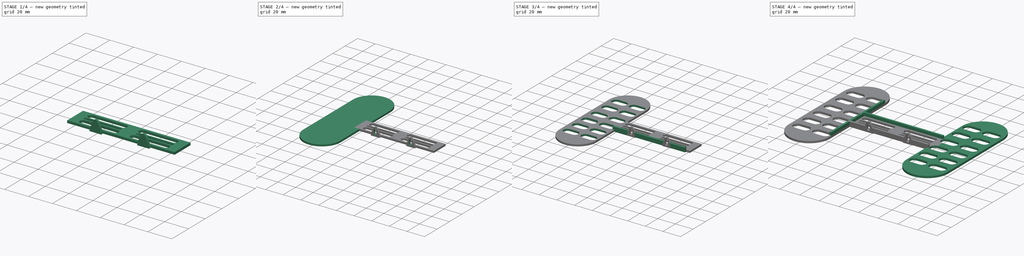
[diagram: build sequence overview — one tinted view per stage of 4, left to right]
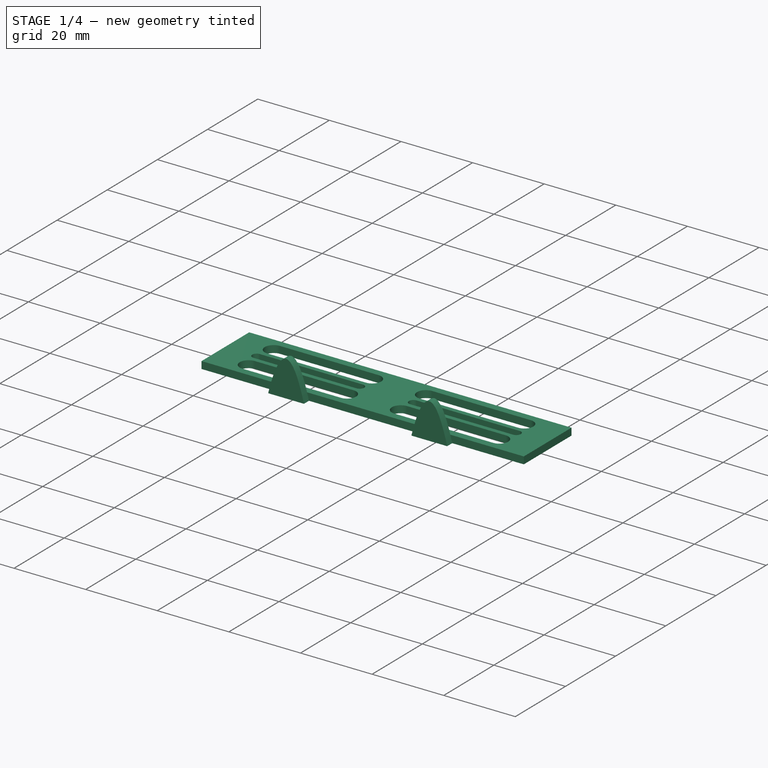
[diagram: stage 1 of 4 — iso view after this stage's code; geometry added in this stage tinted green]
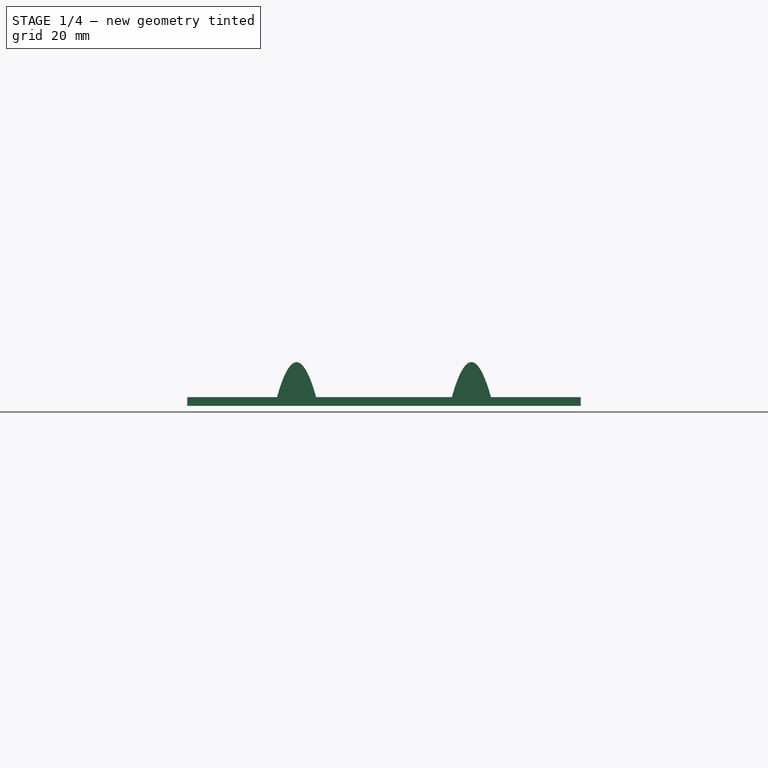
[diagram: stage 1 of 4 — front view after this stage's code; geometry added in this stage tinted green]
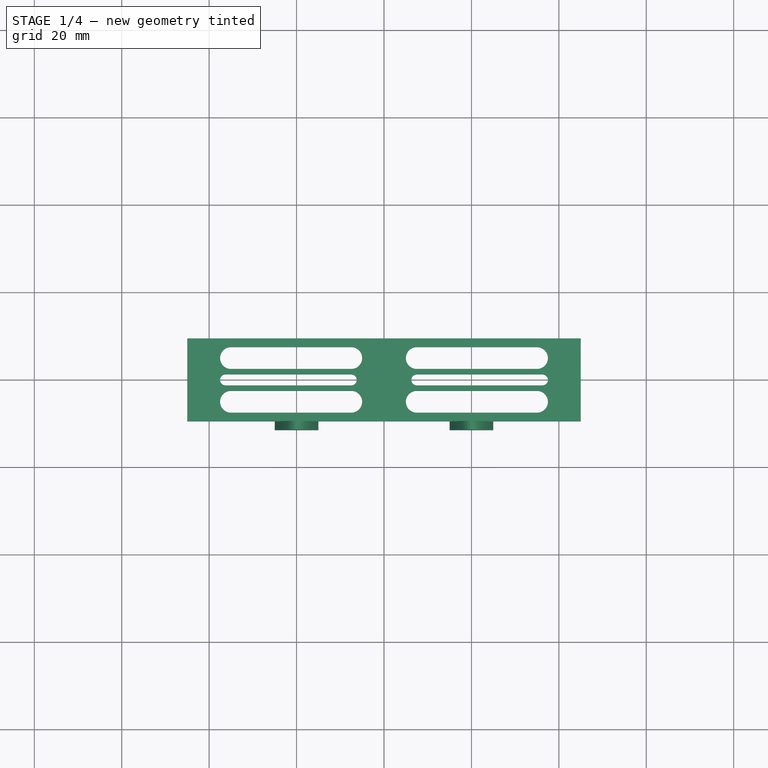
[diagram: stage 1 of 4 — top view after this stage's code; geometry added in this stage tinted green]
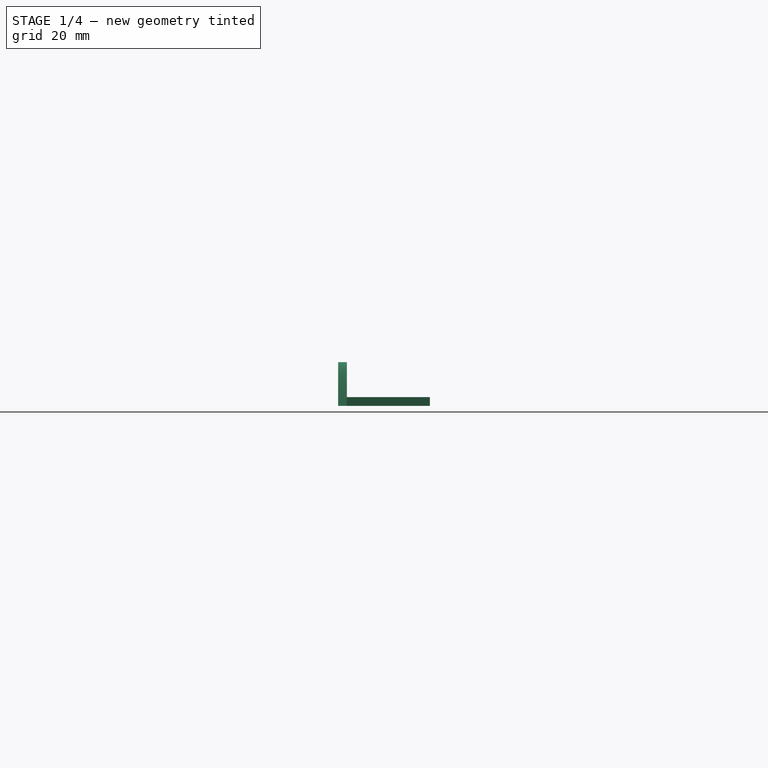
[diagram: stage 1 of 4 — right view after this stage's code; geometry added in this stage tinted green]
FCSTD DOCUMENT  (FreeCAD 0.19RUnknown)
Label: bar-car-simple
License: All rights reserved
LicenseURL: http://en.wikipedia.org/wiki/All_rights_reserved
objects: Sketcher::SketchObject×10, PartDesign::Pad×6, PartDesign::Pocket×4, PartDesign::Mirrored×1, PartDesign::Body×1
note: 32 computed .brp shape members not serialized (recipe doc carries the construction recipe); baked Part::Feature solids carry a one-line shape summary decoded from their .brp

FEATURE [Sketcher::SketchObject] Sketch
  FullyConstrained = false
  MapMode = 5
  Support = -> [XY_Plane]
  sketch-geometry (4):
    g0: LineSegment StartX=-45 StartY=9.5 StartZ=0 EndX=45 EndY=9.5 EndZ=0
    g1: LineSegment StartX=45 StartY=9.5 StartZ=0 EndX=45 EndY=-9.5 EndZ=0
    g2: LineSegment StartX=45 StartY=-9.5 StartZ=0 EndX=-45 EndY=-9.5 EndZ=0
    g3: LineSegment StartX=-45 StartY=-9.5 StartZ=0 EndX=-45 EndY=9.5 EndZ=0
  constraints (8):
    c: Coincident(g0,g1)
    c: Coincident(g1,g2)
    c: Coincident(g2,g3)
    c: Coincident(g3,g0)
    c: Horizontal(g0)
    c: Horizontal(g2)
    c: Vertical(g1)
    c: Vertical(g3)
FEATURE [PartDesign::Pad] Pad
  Direction = (1,1,1)
  Length = 2
  Length2 = 100
  Profile = -> Sketch
  Type = 0
FEATURE [Sketcher::SketchObject] Sketch001
  FullyConstrained = false
  MapMode = 5
  Placement = pos=(0,0,0) rot=(1,0,0;3.14159rad)
  Support = -> [Pad]
  sketch-geometry (24):
    g0: ArcOfCircle CenterX=-7.5 CenterY=5 CenterZ=0 NormalX=0 NormalY=0 NormalZ=1 AngleXU=0 Radius=2.5 StartAngle=4.71239 EndAngle=7.85398
    g1: ArcOfCircle CenterX=-35 CenterY=5 CenterZ=0 NormalX=0 NormalY=0 NormalZ=1 AngleXU=0 Radius=2.5 StartAngle=1.5708 EndAngle=4.71239
    g2: LineSegment StartX=-7.5 StartY=7.5 StartZ=0 EndX=-35 EndY=7.5 EndZ=0
    g3: LineSegment StartX=-7.5 StartY=2.5 StartZ=0 EndX=-35 EndY=2.5 EndZ=0
    g4: ArcOfCircle CenterX=-7.5 CenterY=-5 CenterZ=0 NormalX=0 NormalY=0 NormalZ=1 AngleXU=0 Radius=2.5 StartAngle=4.71239 EndAngle=7.85398
    g5: ArcOfCircle CenterX=-35 CenterY=-5 CenterZ=0 NormalX=0 NormalY=0 NormalZ=1 AngleXU=0 Radius=2.5 StartAngle=1.5708 EndAngle=4.71239
    g6: LineSegment StartX=-7.5 StartY=-2.5 StartZ=0 EndX=-35 EndY=-2.5 EndZ=0
    g7: LineSegment StartX=-7.5 StartY=-7.5 StartZ=0 EndX=-35 EndY=-7.5 EndZ=0
    g8: ArcOfCircle CenterX=7.5 CenterY=5 CenterZ=0 NormalX=0 NormalY=0 NormalZ=1 AngleXU=0 Radius=2.5 StartAngle=1.5708 EndAngle=4.71239
    g9: ArcOfCircle CenterX=35 CenterY=5 CenterZ=0 NormalX=0 NormalY=0 NormalZ=1 AngleXU=0 Radius=2.5 StartAngle=4.71239 EndAngle=7.85398
    g10: LineSegment StartX=7.5 StartY=2.5 StartZ=0 EndX=35 EndY=2.5 EndZ=0
    g11: LineSegment StartX=7.5 StartY=7.5 StartZ=0 EndX=35 EndY=7.5 EndZ=0
    g12: ArcOfCircle CenterX=7.5 CenterY=-5 CenterZ=0 NormalX=0 NormalY=0 NormalZ=1 AngleXU=0 Radius=2.5 StartAngle=1.5708 EndAngle=4.71239
    g13: ArcOfCircle CenterX=35 CenterY=-5 CenterZ=0 NormalX=0 NormalY=0 NormalZ=1 AngleXU=0 Radius=2.5 StartAngle=4.71239 EndAngle=7.85398
    g14: LineSegment StartX=7.5 StartY=-7.5 StartZ=0 EndX=35 EndY=-7.5 EndZ=0
    g15: LineSegment StartX=7.5 StartY=-2.5 StartZ=0 EndX=35 EndY=-2.5 EndZ=0
    g16: ArcOfCircle CenterX=-7.5 CenterY=0 CenterZ=0 NormalX=0 NormalY=0 NormalZ=1 AngleXU=0 Radius=1.25 StartAngle=4.71239 EndAngle=7.85398
    g17: ArcOfCircle CenterX=-36.25 CenterY=0 CenterZ=0 NormalX=0 NormalY=0 NormalZ=1 AngleXU=0 Radius=1.25 StartAngle=1.5708 EndAngle=4.71239
    g18: LineSegment StartX=-7.5 StartY=1.25 StartZ=0 EndX=-36.25 EndY=1.25 EndZ=0
    g19: LineSegment StartX=-7.5 StartY=-1.25 StartZ=0 EndX=-36.25 EndY=-1.25 EndZ=0
    g20: ArcOfCircle CenterX=7.5 CenterY=0 CenterZ=0 NormalX=0 NormalY=0 NormalZ=1 AngleXU=0 Radius=1.25 StartAngle=1.5708 EndAngle=4.71239
    g21: ArcOfCircle CenterX=36.25 CenterY=0 CenterZ=0 NormalX=0 NormalY=0 NormalZ=1 AngleXU=0 Radius=1.25 StartAngle=4.71239 EndAngle=7.85398
    g22: LineSegment StartX=7.5 StartY=-1.25 StartZ=0 EndX=36.25 EndY=-1.25 EndZ=0
    g23: LineSegment StartX=7.5 StartY=1.25 StartZ=0 EndX=36.25 EndY=1.25 EndZ=0
  constraints (38):
    c: Tangent(g0,g3) = 1.5708
    c: Tangent(g0,g2) = -1.5708
    c: Tangent(g2,g1) = -1.5708
    c: Tangent(g3,g1) = 1.5708
    c: Horizontal(g2)
    c: Equal(g0,g1)
    c: Tangent(g4,g7) = 1.5708
    c: Tangent(g4,g6) = -1.5708
    c: Tangent(g6,g5) = -1.5708
    c: Tangent(g7,g5) = 1.5708
    c: Horizontal(g6)
    c: Equal(g4,g5)
    c: Tangent(g8,g11) = 1.5708
    c: Tangent(g8,g10) = -1.5708
    c: Tangent(g10,g9) = -1.5708
    c: Tangent(g11,g9) = 1.5708
    c: Horizontal(g10)
    c: Equal(g8,g9)
    c: Tangent(g12,g15) = 1.5708
    c: Tangent(g12,g14) = -1.5708
    c: Tangent(g14,g13) = -1.5708
    c: Tangent(g15,g13) = 1.5708
    c: Horizontal(g14)
    c: Equal(g12,g13)
    c: Tangent(g16,g19) = 1.5708
    c: Tangent(g16,g18) = -1.5708
    c: Tangent(g18,g17) = -1.5708
    c: Tangent(g19,g17) = 1.5708
    c: Horizontal(g18)
    c: Equal(g16,g17)
    c: PointOnObject(g16,g-1)
    c: Tangent(g20,g23) = 1.5708
    c: Tangent(g20,g22) = -1.5708
    c: Tangent(g22,g21) = -1.5708
    c: Tangent(g23,g21) = 1.5708
    c: Horizontal(g22)
    c: Equal(g20,g21)
    c: PointOnObject(g20,g-1)
FEATURE [PartDesign::Pocket] Pocket
  BaseFeature = -> Pad
  Length = 5
  Length2 = 100
  Profile = -> Sketch001
  Type = 0
FEATURE [Sketcher::SketchObject] Sketch002
  FullyConstrained = false
  MapMode = 5
  Placement = pos=(0,-9.5,0) rot=(1,0,0;1.5708rad)
  Support = -> [Pocket]
  sketch-geometry (14):
    g0: Circle CenterX=-25 CenterY=0 CenterZ=0 NormalX=0 NormalY=0 NormalZ=1 AngleXU=0 Radius=1
    g1: Circle CenterX=-20 CenterY=20 CenterZ=0 NormalX=0 NormalY=0 NormalZ=1 AngleXU=0 Radius=1
    g2: Circle CenterX=-15 CenterY=0 CenterZ=0 NormalX=0 NormalY=0 NormalZ=1 AngleXU=0 Radius=1
    g3: BSplineCurve PolesCount=3 KnotsCount=2 Degree=2 IsPeriodic=0
    g4: GeomPoint X=-25 Y=0 Z=0
    g5: GeomPoint X=-15 Y=0 Z=0
    g6: LineSegment StartX=-25 StartY=0 StartZ=0 EndX=-15 EndY=0 EndZ=0
    g7: Circle CenterX=15 CenterY=0 CenterZ=0 NormalX=0 NormalY=0 NormalZ=1 AngleXU=0 Radius=1
    g8: Circle CenterX=20 CenterY=20 CenterZ=0 NormalX=0 NormalY=0 NormalZ=1 AngleXU=0 Radius=1
    g9: Circle CenterX=25 CenterY=0 CenterZ=0 NormalX=0 NormalY=0 NormalZ=1 AngleXU=0 Radius=1
    g10: BSplineCurve PolesCount=3 KnotsCount=2 Degree=2 IsPeriodic=0
    g11: GeomPoint X=15 Y=0 Z=0
    g12: GeomPoint X=25 Y=0 Z=0
    g13: LineSegment StartX=15 StartY=0 StartZ=0 EndX=25 EndY=0 EndZ=0
  constraints (21):
    c: PointOnObject(g3,g-1)
    c: Weight(g0) = 1
    c: Equal(g0,g1)
    c: Equal(g0,g2)
    c: InternalAlignment(g0,g3)
    c: InternalAlignment(g1,g3)
    c: InternalAlignment(g2,g3)
    c: InternalAlignment(g4,g3)
    c: InternalAlignment(g5,g3)
    c: Coincident(g6,g3)
    c: Coincident(g6,g3)
    c: Horizontal(g6)
    c: PointOnObject(g10,g-1)
    c: Weight(g7) = 1
    c: Equal(g7,g9)
    c: PointOnObject(g10,g-1)
    c: InternalAlignment(g7,g10)
    c: InternalAlignment(g8,g10)
    c: InternalAlignment(g9,g10)
    c: Coincident(g13,g10)
    c: Horizontal(g13)
FEATURE [PartDesign::Pad] Pad001
  BaseFeature = -> Pocket
  Direction = (1,1,1)
  Length = 2
  Length2 = 100
  Profile = -> Sketch002
  Type = 0
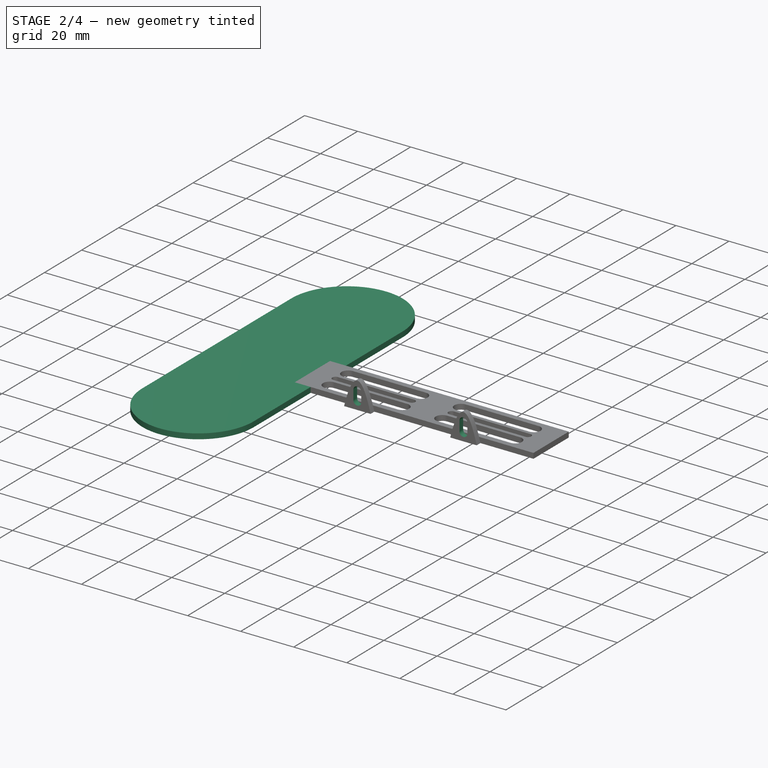
[diagram: stage 2 of 4 — iso view after this stage's code; geometry added in this stage tinted green]
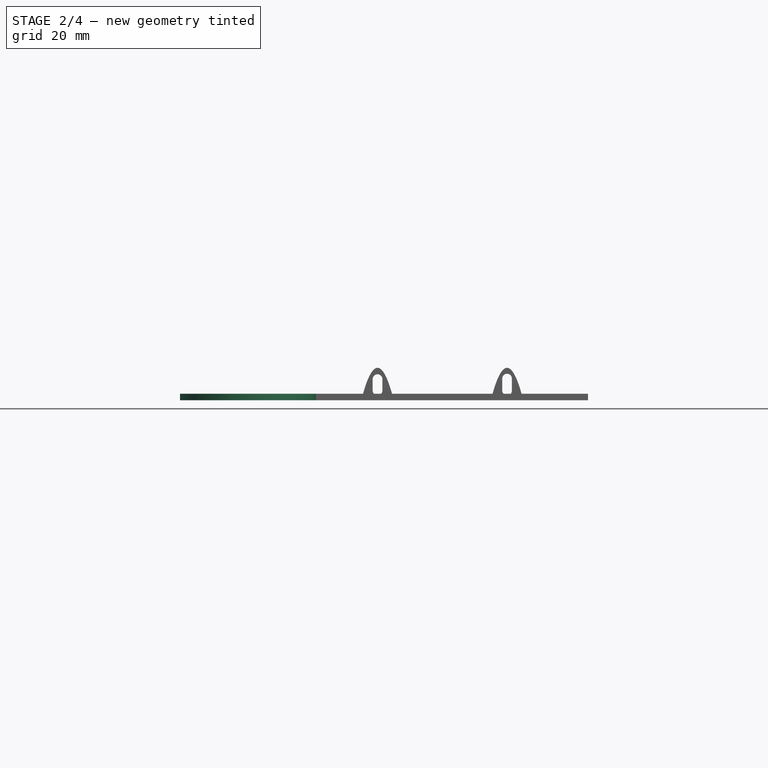
[diagram: stage 2 of 4 — front view after this stage's code; geometry added in this stage tinted green]
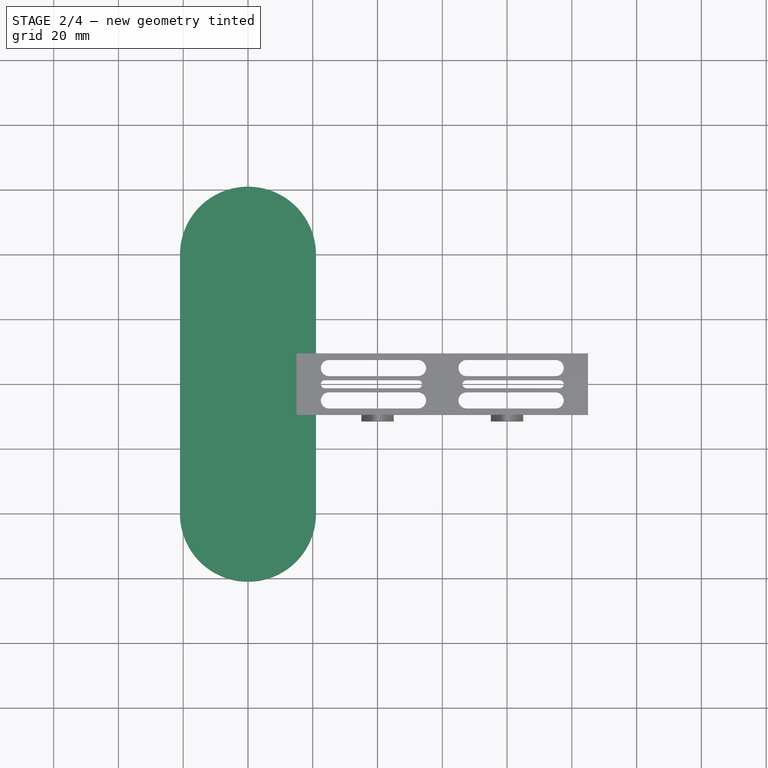
[diagram: stage 2 of 4 — top view after this stage's code; geometry added in this stage tinted green]
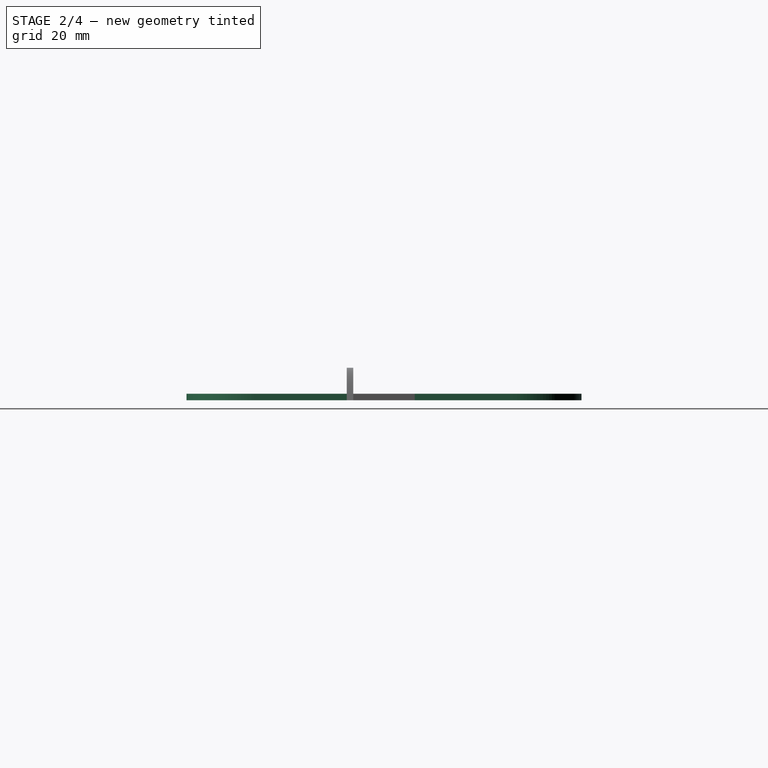
[diagram: stage 2 of 4 — right view after this stage's code; geometry added in this stage tinted green]
FEATURE [Sketcher::SketchObject] Sketch003
  FullyConstrained = false
  MapMode = 5
  Placement = pos=(0,-11.5,2.1e-15) rot=(1,0,0;1.5708rad)
  Support = -> [Pad001]
  sketch-geometry (4):
    g0: ArcOfCircle CenterX=-20 CenterY=3 CenterZ=0 NormalX=0 NormalY=0 NormalZ=1 AngleXU=0 Radius=1.5 StartAngle=3.14159 EndAngle=6.28319
    g1: ArcOfCircle CenterX=-20 CenterY=6.5 CenterZ=0 NormalX=0 NormalY=0 NormalZ=1 AngleXU=0 Radius=1.5 StartAngle=0 EndAngle=3.14159
    g2: LineSegment StartX=-18.5 StartY=3 StartZ=0 EndX=-18.5 EndY=6.5 EndZ=0
    g3: LineSegment StartX=-21.5 StartY=3 StartZ=0 EndX=-21.5 EndY=6.5 EndZ=0
  constraints (6):
    c: Tangent(g0,g3) = 1.5708
    c: Tangent(g0,g2) = -1.5708
    c: Tangent(g2,g1) = -1.5708
    c: Tangent(g3,g1) = 1.5708
    c: Vertical(g2)
    c: Equal(g0,g1)
FEATURE [PartDesign::Pocket] Pocket001
  BaseFeature = -> Pad001
  Length = 2
  Length2 = 100
  Profile = -> Sketch003
  Type = 0
FEATURE [Sketcher::SketchObject] Sketch004
  FullyConstrained = false
  MapMode = 5
  Placement = pos=(0,-11.5,2.1e-15) rot=(1,0,0;1.5708rad)
  Support = -> [Pocket001]
  sketch-geometry (4):
    g0: ArcOfCircle CenterX=20 CenterY=3 CenterZ=0 NormalX=0 NormalY=0 NormalZ=1 AngleXU=0 Radius=1.5 StartAngle=3.14159 EndAngle=6.28319
    g1: ArcOfCircle CenterX=20 CenterY=6.66448 CenterZ=0 NormalX=0 NormalY=0 NormalZ=1 AngleXU=0 Radius=1.5 StartAngle=0 EndAngle=3.14159
    g2: LineSegment StartX=21.5 StartY=3 StartZ=0 EndX=21.5 EndY=6.66448 EndZ=0
    g3: LineSegment StartX=18.5 StartY=3 StartZ=0 EndX=18.5 EndY=6.66448 EndZ=0
  constraints (6):
    c: Tangent(g0,g3) = 1.5708
    c: Tangent(g0,g2) = -1.5708
    c: Tangent(g2,g1) = -1.5708
    c: Tangent(g3,g1) = 1.5708
    c: Vertical(g2)
    c: Equal(g0,g1)
FEATURE [PartDesign::Pocket] Pocket002
  BaseFeature = -> Pocket001
  Length = 2
  Length2 = 100
  Profile = -> Sketch004
  Type = 0
FEATURE [Sketcher::SketchObject] Sketch005
  FullyConstrained = false
  MapMode = 5
  Placement = pos=(0,0,0) rot=(1,0,0;3.14159rad)
  Support = -> [Pocket002]
  sketch-geometry (4):
    g0: ArcOfCircle CenterX=-60 CenterY=40 CenterZ=0 NormalX=0 NormalY=0 NormalZ=1 AngleXU=0 Radius=21 StartAngle=1e-16 EndAngle=3.14159
    g1: ArcOfCircle CenterX=-60 CenterY=-40 CenterZ=0 NormalX=0 NormalY=0 NormalZ=1 AngleXU=0 Radius=21 StartAngle=3.14159 EndAngle=6.28319
    g2: LineSegment StartX=-81 StartY=40 StartZ=0 EndX=-81 EndY=-40 EndZ=0
    g3: LineSegment StartX=-39 StartY=40 StartZ=0 EndX=-39 EndY=-40 EndZ=0
  constraints (6):
    c: Tangent(g0,g3) = 1.5708
    c: Tangent(g0,g2) = -1.5708
    c: Tangent(g2,g1) = -1.5708
    c: Tangent(g3,g1) = 1.5708
    c: Vertical(g2)
    c: Equal(g0,g1)
FEATURE [PartDesign::Pad] Pad002
  BaseFeature = -> Pocket002
  Direction = (1,1,1)
  Length = 2
  Length2 = 100
  Profile = -> Sketch005
  Reversed = true
  Type = 0
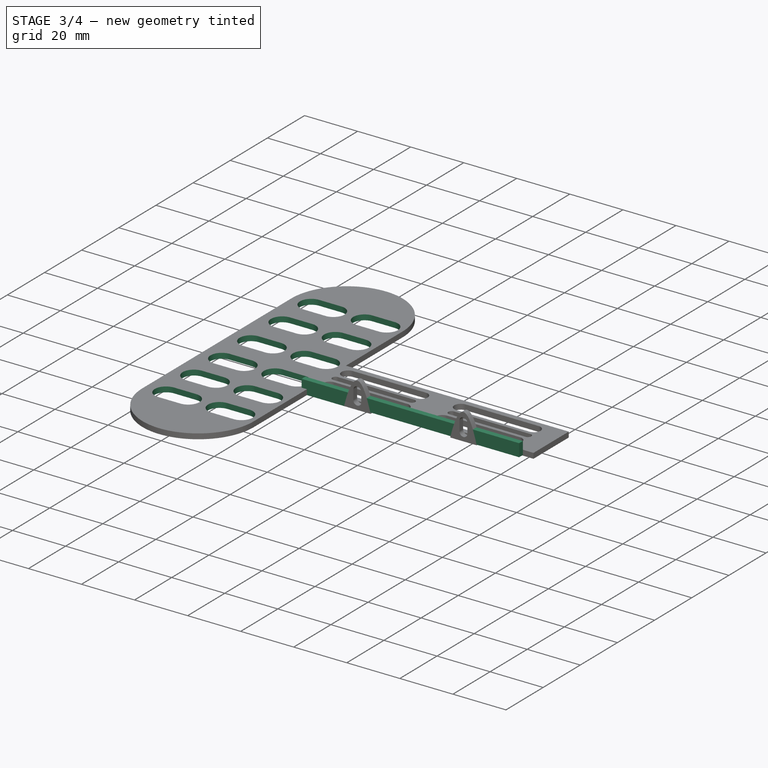
[diagram: stage 3 of 4 — iso view after this stage's code; geometry added in this stage tinted green]
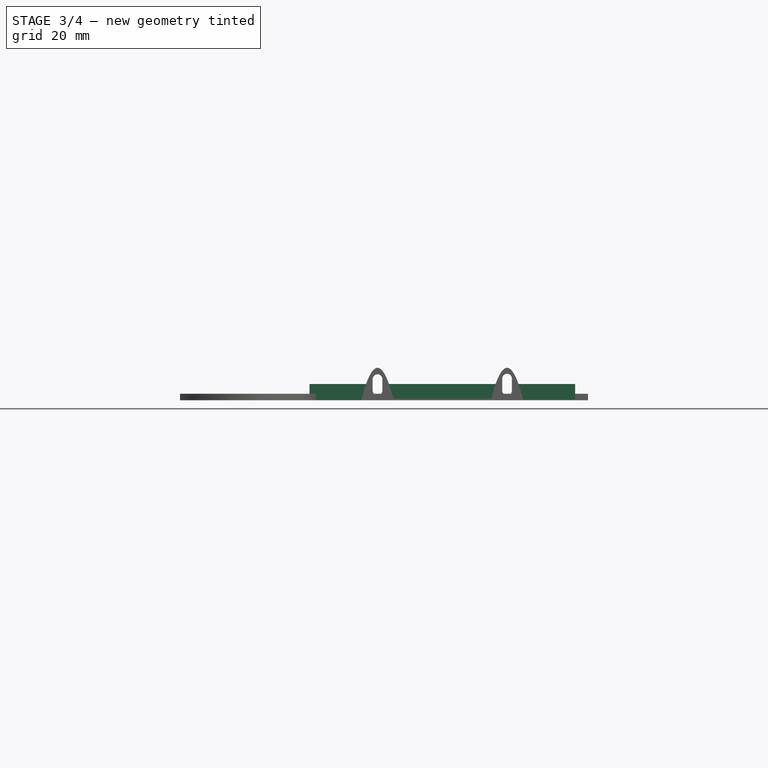
[diagram: stage 3 of 4 — front view after this stage's code; geometry added in this stage tinted green]
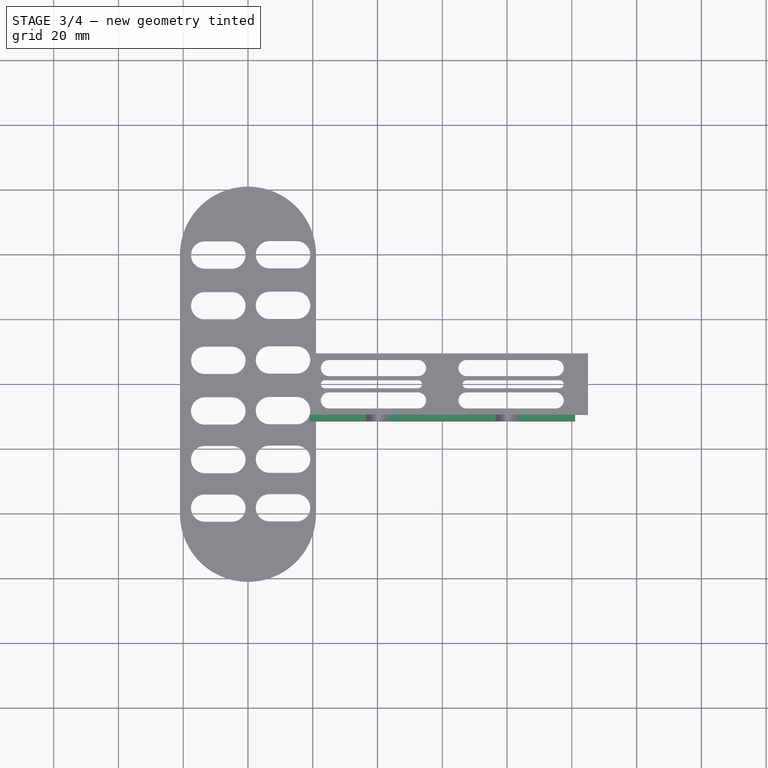
[diagram: stage 3 of 4 — top view after this stage's code; geometry added in this stage tinted green]
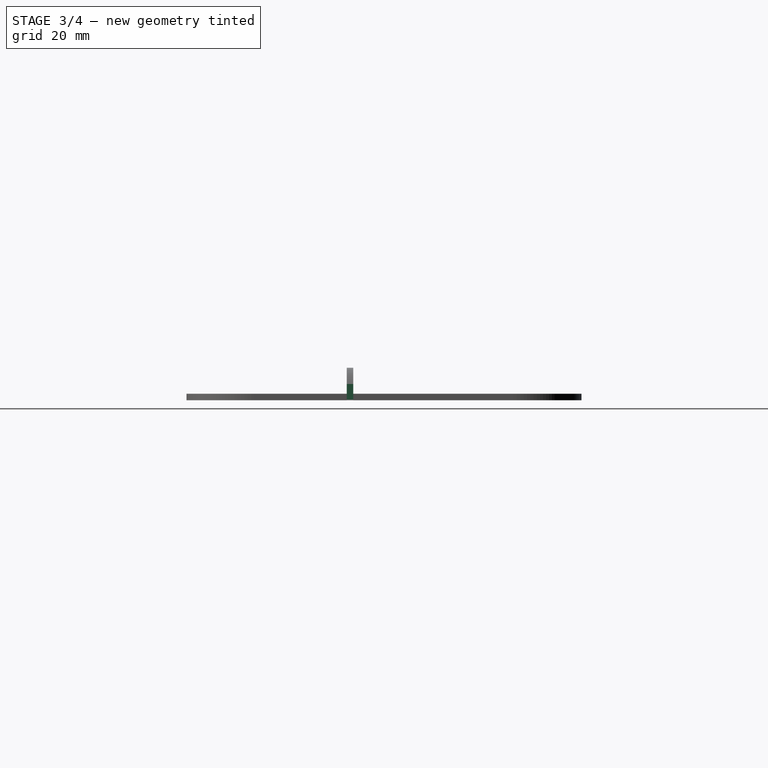
[diagram: stage 3 of 4 — right view after this stage's code; geometry added in this stage tinted green]
FEATURE [Sketcher::SketchObject] Sketch007
  FullyConstrained = false
  MapMode = 5
  Placement = pos=(0,0,2) rot=(0,0,1;0rad)
  Support = -> [Pad002]
  sketch-geometry (48):
    g0: ArcOfCircle CenterX=-45 CenterY=40 CenterZ=0 NormalX=0 NormalY=0 NormalZ=1 AngleXU=0 Radius=4.23957 StartAngle=4.71239 EndAngle=7.85398
    g1: ArcOfCircle CenterX=-53.3509 CenterY=40 CenterZ=0 NormalX=0 NormalY=0 NormalZ=1 AngleXU=0 Radius=4.23957 StartAngle=1.5708 EndAngle=4.71239
    g2: LineSegment StartX=-45 StartY=44.2396 StartZ=0 EndX=-53.3509 EndY=44.2396 EndZ=0
    g3: LineSegment StartX=-45 StartY=35.7604 StartZ=0 EndX=-53.3509 EndY=35.7604 EndZ=0
    g4: ArcOfCircle CenterX=-65 CenterY=39.8824 CenterZ=0 NormalX=0 NormalY=0 NormalZ=1 AngleXU=0 Radius=4.23957 StartAngle=4.71239 EndAngle=7.85398
    g5: ArcOfCircle CenterX=-73.3509 CenterY=39.8824 CenterZ=0 NormalX=0 NormalY=0 NormalZ=1 AngleXU=0 Radius=4.23957 StartAngle=1.5708 EndAngle=4.71239
    g6: LineSegment StartX=-65 StartY=44.122 StartZ=0 EndX=-73.3509 EndY=44.122 EndZ=0
    g7: LineSegment StartX=-65 StartY=35.6428 StartZ=0 EndX=-73.3509 EndY=35.6428 EndZ=0
    g8: ArcOfCircle CenterX=-45 CenterY=24.3572 CenterZ=0 NormalX=0 NormalY=0 NormalZ=1 AngleXU=0 Radius=4.23957 StartAngle=4.71239 EndAngle=7.85398
    g9: ArcOfCircle CenterX=-53.3509 CenterY=24.3572 CenterZ=0 NormalX=0 NormalY=0 NormalZ=1 AngleXU=0 Radius=4.23957 StartAngle=1.5708 EndAngle=4.71239
    g10: LineSegment StartX=-45 StartY=28.5967 StartZ=0 EndX=-53.3509 EndY=28.5967 EndZ=0
    g11: LineSegment StartX=-45 StartY=20.1176 StartZ=0 EndX=-53.3509 EndY=20.1176 EndZ=0
    g12: ArcOfCircle CenterX=-65 CenterY=24.2396 CenterZ=0 NormalX=0 NormalY=0 NormalZ=1 AngleXU=0 Radius=4.23957 StartAngle=4.71239 EndAngle=7.85398
    g13: ArcOfCircle CenterX=-73.3509 CenterY=24.2396 CenterZ=0 NormalX=0 NormalY=0 NormalZ=1 AngleXU=0 Radius=4.23957 StartAngle=1.5708 EndAngle=4.71239
    g14: LineSegment StartX=-65 StartY=28.4791 StartZ=0 EndX=-73.3509 EndY=28.4791 EndZ=0
    g15: LineSegment StartX=-65 StartY=20 StartZ=0 EndX=-73.3509 EndY=20 EndZ=0
    g16: ArcOfCircle CenterX=-45 CenterY=7.5 CenterZ=0 NormalX=0 NormalY=0 NormalZ=1 AngleXU=0 Radius=4.23957 StartAngle=4.71239 EndAngle=7.85398
    g17: ArcOfCircle CenterX=-53.3509 CenterY=7.5 CenterZ=0 NormalX=0 NormalY=0 NormalZ=1 AngleXU=0 Radius=4.23957 StartAngle=1.5708 EndAngle=4.71239
    g18: LineSegment StartX=-45 StartY=11.7396 StartZ=0 EndX=-53.3509 EndY=11.7396 EndZ=0
    g19: LineSegment StartX=-45 StartY=3.26043 StartZ=0 EndX=-53.3509 EndY=3.26043 EndZ=0
    g20: ArcOfCircle CenterX=-65 CenterY=7.3824 CenterZ=0 NormalX=0 NormalY=0 NormalZ=1 AngleXU=0 Radius=4.23957 StartAngle=4.71239 EndAngle=7.85398
    g21: ArcOfCircle CenterX=-73.3509 CenterY=7.3824 CenterZ=0 NormalX=0 NormalY=0 NormalZ=1 AngleXU=0 Radius=4.23957 StartAngle=1.5708 EndAngle=4.71239
    g22: LineSegment StartX=-65 StartY=11.622 StartZ=0 EndX=-73.3509 EndY=11.622 EndZ=0
    g23: LineSegment StartX=-65 StartY=3.14283 StartZ=0 EndX=-73.3509 EndY=3.14283 EndZ=0
    g24: ArcOfCircle CenterX=-45 CenterY=-8.14283 CenterZ=0 NormalX=0 NormalY=0 NormalZ=1 AngleXU=0 Radius=4.23957 StartAngle=4.71239 EndAngle=7.85398
    g25: ArcOfCircle CenterX=-53.3509 CenterY=-8.14283 CenterZ=0 NormalX=0 NormalY=0 NormalZ=1 AngleXU=0 Radius=4.23957 StartAngle=1.5708 EndAngle=4.71239
    g26: LineSegment StartX=-45 StartY=-3.90325 StartZ=0 EndX=-53.3509 EndY=-3.90325 EndZ=0
    g27: LineSegment StartX=-45 StartY=-12.3824 StartZ=0 EndX=-53.3509 EndY=-12.3824 EndZ=0
    g28: ArcOfCircle CenterX=-65 CenterY=-8.26043 CenterZ=0 NormalX=0 NormalY=0 NormalZ=1 AngleXU=0 Radius=4.23957 StartAngle=4.71239 EndAngle=7.85398
    g29: ArcOfCircle CenterX=-73.3509 CenterY=-8.26043 CenterZ=0 NormalX=0 NormalY=0 NormalZ=1 AngleXU=0 Radius=4.23957 StartAngle=1.5708 EndAngle=4.71239
    g30: LineSegment StartX=-65 StartY=-4.02085 StartZ=0 EndX=-73.3509 EndY=-4.02085 EndZ=0
    g31: LineSegment StartX=-65 StartY=-12.5 StartZ=0 EndX=-73.3509 EndY=-12.5 EndZ=0
    g32: ArcOfCircle CenterX=-45 CenterY=-23.1428 CenterZ=0 NormalX=0 NormalY=0 NormalZ=1 AngleXU=0 Radius=4.23957 StartAngle=4.71239 EndAngle=7.85398
    g33: ArcOfCircle CenterX=-53.3509 CenterY=-23.1428 CenterZ=0 NormalX=0 NormalY=0 NormalZ=1 AngleXU=0 Radius=4.23957 StartAngle=1.5708 EndAngle=4.71239
    g34: LineSegment StartX=-45 StartY=-18.9033 StartZ=0 EndX=-53.3509 EndY=-18.9033 EndZ=0
    g35: LineSegment StartX=-45 StartY=-27.3824 StartZ=0 EndX=-53.3509 EndY=-27.3824 EndZ=0
    g36: ArcOfCircle CenterX=-65 CenterY=-23.2604 CenterZ=0 NormalX=0 NormalY=0 NormalZ=1 AngleXU=0 Radius=4.23957 StartAngle=4.71239 EndAngle=7.85398
    g37: ArcOfCircle CenterX=-73.3509 CenterY=-23.2604 CenterZ=0 NormalX=0 NormalY=0 NormalZ=1 AngleXU=0 Radius=4.23957 StartAngle=1.5708 EndAngle=4.71239
    g38: LineSegment StartX=-65 StartY=-19.0209 StartZ=0 EndX=-73.3509 EndY=-19.0209 EndZ=0
    g39: LineSegment StartX=-65 StartY=-27.5 StartZ=0 EndX=-73.3509 EndY=-27.5 EndZ=0
    g40: ArcOfCircle CenterX=-45 CenterY=-38.1428 CenterZ=0 NormalX=0 NormalY=0 NormalZ=1 AngleXU=0 Radius=4.23957 StartAngle=4.71239 EndAngle=7.85398
    g41: ArcOfCircle CenterX=-53.3509 CenterY=-38.1428 CenterZ=0 NormalX=0 NormalY=0 NormalZ=1 AngleXU=0 Radius=4.23957 StartAngle=1.5708 EndAngle=4.71239
    g42: LineSegment StartX=-45 StartY=-33.9033 StartZ=0 EndX=-53.3509 EndY=-33.9033 EndZ=0
    g43: LineSegment StartX=-45 StartY=-42.3824 StartZ=0 EndX=-53.3509 EndY=-42.3824 EndZ=0
    g44: ArcOfCircle CenterX=-65 CenterY=-38.2604 CenterZ=0 NormalX=0 NormalY=0 NormalZ=1 AngleXU=0 Radius=4.23957 StartAngle=4.71239 EndAngle=7.85398
    g45: ArcOfCircle CenterX=-73.3509 CenterY=-38.2604 CenterZ=0 NormalX=0 NormalY=0 NormalZ=1 AngleXU=0 Radius=4.23957 StartAngle=1.5708 EndAngle=4.71239
    g46: LineSegment StartX=-65 StartY=-34.0209 StartZ=0 EndX=-73.3509 EndY=-34.0209 EndZ=0
    g47: LineSegment StartX=-65 StartY=-42.5 StartZ=0 EndX=-73.3509 EndY=-42.5 EndZ=0
  constraints (72):
    c: Tangent(g0,g3) = 1.5708
    c: Tangent(g0,g2) = -1.5708
    c: Tangent(g2,g1) = -1.5708
    c: Tangent(g3,g1) = 1.5708
    c: Horizontal(g2)
    c: Equal(g0,g1)
    c: Tangent(g4,g7) = 1.5708
    c: Tangent(g4,g6) = -1.5708
    c: Tangent(g6,g5) = -1.5708
    c: Tangent(g7,g5) = 1.5708
    c: Horizontal(g6)
    c: Equal(g4,g5)
    c: Tangent(g8,g11) = 1.5708
    c: Tangent(g8,g10) = -1.5708
    c: Tangent(g10,g9) = -1.5708
    c: Tangent(g11,g9) = 1.5708
    c: Horizontal(g10)
    c: Equal(g8,g9)
    c: Tangent(g12,g15) = 1.5708
    c: Tangent(g12,g14) = -1.5708
    c: Tangent(g14,g13) = -1.5708
    c: Tangent(g15,g13) = 1.5708
    c: Horizontal(g14)
    c: Equal(g12,g13)
    c: Tangent(g16,g19) = 1.5708
    c: Tangent(g16,g18) = -1.5708
    c: Tangent(g18,g17) = -1.5708
    c: Tangent(g19,g17) = 1.5708
    c: Horizontal(g18)
    c: Equal(g16,g17)
    c: Tangent(g20,g23) = 1.5708
    c: Tangent(g20,g22) = -1.5708
    c: Tangent(g22,g21) = -1.5708
    c: Tangent(g23,g21) = 1.5708
    c: Horizontal(g22)
    c: Equal(g20,g21)
    c: Tangent(g24,g27) = 1.5708
    c: Tangent(g24,g26) = -1.5708
    c: Tangent(g26,g25) = -1.5708
    c: Tangent(g27,g25) = 1.5708
    c: Horizontal(g26)
    c: Equal(g24,g25)
    c: Tangent(g28,g31) = 1.5708
    c: Tangent(g28,g30) = -1.5708
    c: Tangent(g30,g29) = -1.5708
    c: Tangent(g31,g29) = 1.5708
    c: Horizontal(g30)
    c: Equal(g28,g29)
    c: Tangent(g32,g35) = 1.5708
    c: Tangent(g32,g34) = -1.5708
    c: Tangent(g34,g33) = -1.5708
    c: Tangent(g35,g33) = 1.5708
    c: Horizontal(g34)
    c: Equal(g32,g33)
    c: Tangent(g36,g39) = 1.5708
    c: Tangent(g36,g38) = -1.5708
    c: Tangent(g38,g37) = -1.5708
    c: Tangent(g39,g37) = 1.5708
    c: Horizontal(g38)
    c: Equal(g36,g37)
    c: Tangent(g40,g43) = 1.5708
    c: Tangent(g40,g42) = -1.5708
    c: Tangent(g42,g41) = -1.5708
    c: Tangent(g43,g41) = 1.5708
    c: Horizontal(g42)
    c: Equal(g40,g41)
    c: Tangent(g44,g47) = 1.5708
    c: Tangent(g44,g46) = -1.5708
    c: Tangent(g46,g45) = -1.5708
    c: Tangent(g47,g45) = 1.5708
    c: Horizontal(g46)
    c: Equal(g44,g45)
FEATURE [PartDesign::Pocket] Pocket003
  BaseFeature = -> Pad002
  Length = 5
  Length2 = 100
  Profile = -> Sketch007
  Type = 0
FEATURE [Sketcher::SketchObject] Sketch008
  FullyConstrained = false
  MapMode = 5
  Placement = pos=(0,-9.5,0) rot=(1,0,0;1.5708rad)
  sketch-geometry (12):
    g0: LineSegment StartX=-17 StartY=5 StartZ=0 EndX=17.3883 EndY=5 EndZ=0
    g1: LineSegment StartX=17.3883 StartY=5 StartZ=0 EndX=17.3883 EndY=0.484792 EndZ=0
    g2: LineSegment StartX=17.3883 StartY=0.484792 StartZ=0 EndX=-17 EndY=0.484792 EndZ=0
    g3: LineSegment StartX=-17 StartY=0.484792 StartZ=0 EndX=-17 EndY=5 EndZ=0
    g4: LineSegment StartX=-23 StartY=5 StartZ=0 EndX=-41 EndY=5 EndZ=0
    g5: LineSegment StartX=-41 StartY=5 StartZ=0 EndX=-41 EndY=0 EndZ=0
    g6: LineSegment StartX=-41 StartY=0 StartZ=0 EndX=-23 EndY=0 EndZ=0
    g7: LineSegment StartX=-23 StartY=0 StartZ=0 EndX=-23 EndY=5 EndZ=0
    g8: LineSegment StartX=23 StartY=5 StartZ=0 EndX=41 EndY=5 EndZ=0
    g9: LineSegment StartX=41 StartY=5 StartZ=0 EndX=41 EndY=0.22469 EndZ=0
    g10: LineSegment StartX=41 StartY=0.22469 StartZ=0 EndX=23 EndY=0.22469 EndZ=0
    g11: LineSegment StartX=23 StartY=0.22469 StartZ=0 EndX=23 EndY=5 EndZ=0
  constraints (25):
    c: Coincident(g0,g1)
    c: Coincident(g1,g2)
    c: Coincident(g2,g3)
    c: Coincident(g3,g0)
    c: Horizontal(g0)
    c: Horizontal(g2)
    c: Vertical(g1)
    c: Vertical(g3)
    c: Coincident(g4,g5)
    c: Coincident(g5,g6)
    c: Coincident(g6,g7)
    c: Coincident(g7,g4)
    c: Horizontal(g4)
    c: Horizontal(g6)
    c: Vertical(g5)
    c: Vertical(g7)
    c: PointOnObject(g5,g-1)
    c: Coincident(g8,g9)
    c: Coincident(g9,g10)
    c: Coincident(g10,g11)
    c: Coincident(g11,g8)
    c: Horizontal(g8)
    c: Horizontal(g10)
    c: Vertical(g9)
    c: Vertical(g11)
FEATURE [PartDesign::Pad] Pad003
  BaseFeature = -> Pocket003
  Direction = (1,1,1)
  Length = 2
  Length2 = 100
  Profile = -> Sketch008
  Type = 0
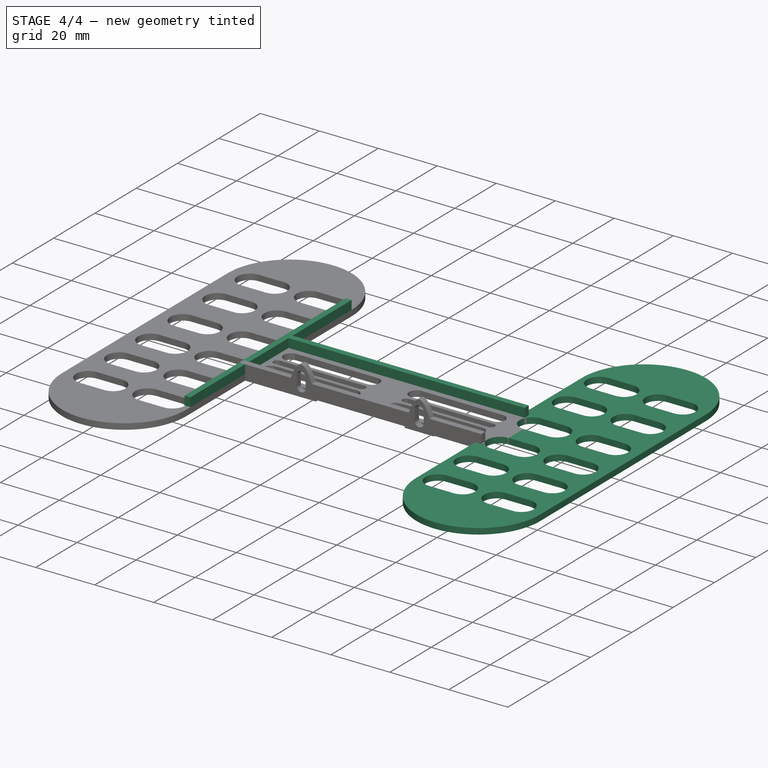
[diagram: stage 4 of 4 — iso view after this stage's code; geometry added in this stage tinted green]
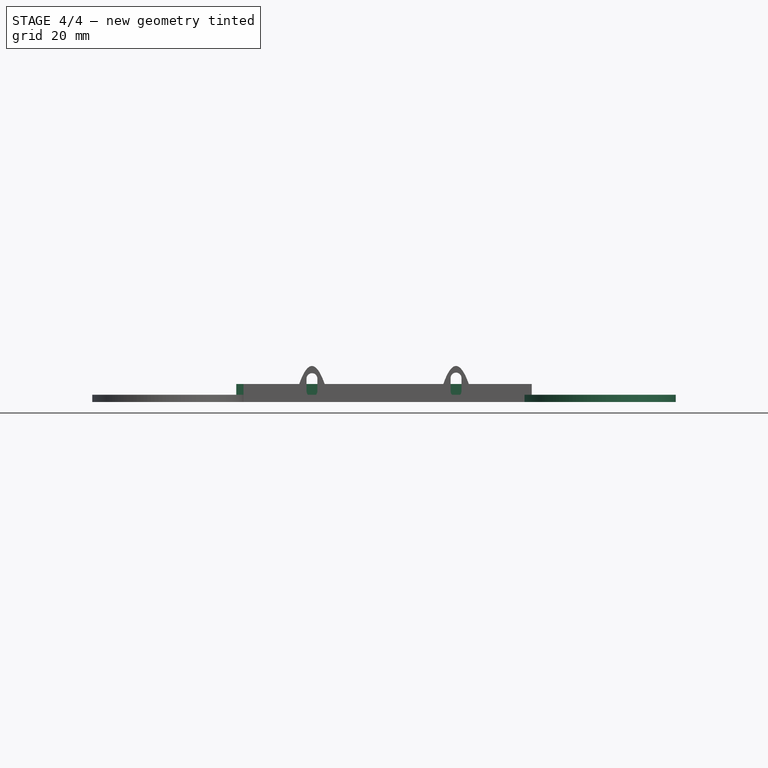
[diagram: stage 4 of 4 — front view after this stage's code; geometry added in this stage tinted green]
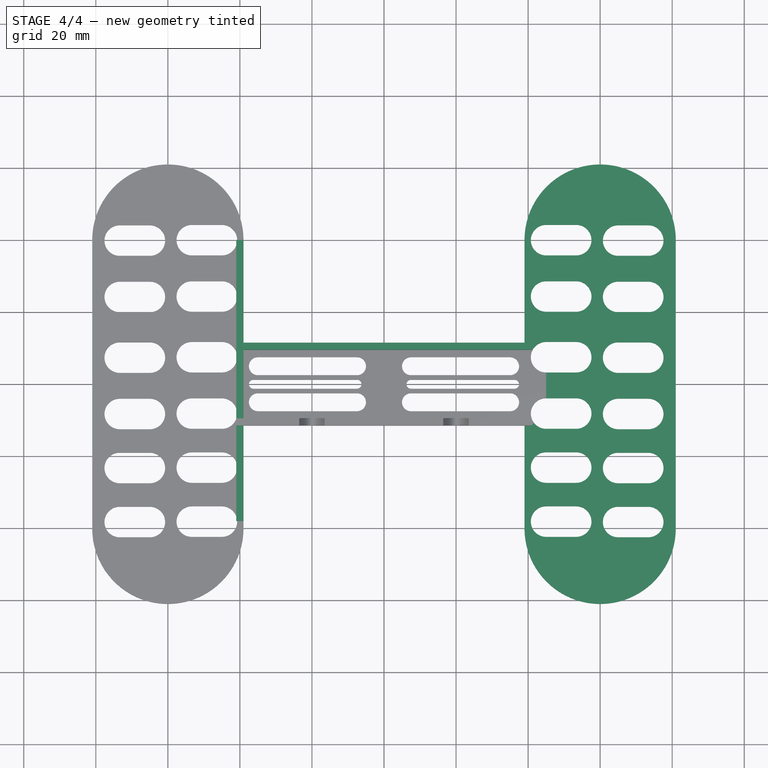
[diagram: stage 4 of 4 — top view after this stage's code; geometry added in this stage tinted green]
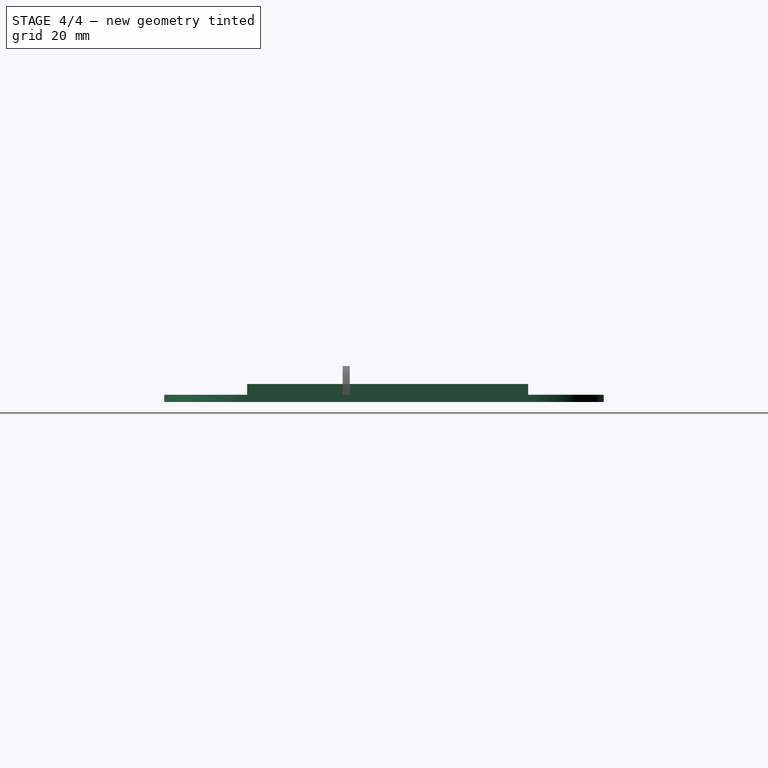
[diagram: stage 4 of 4 — right view after this stage's code; geometry added in this stage tinted green]
FEATURE [Sketcher::SketchObject] Sketch009
  FullyConstrained = false
  MapMode = 5
  Placement = pos=(0,9.5,0) rot=(0,0.707107,0.707107;3.14159rad)
  Support = -> [Pad003]
  sketch-geometry (4):
    g0: LineSegment StartX=-41 StartY=5 StartZ=0 EndX=41 EndY=5 EndZ=0
    g1: LineSegment StartX=41 StartY=5 StartZ=0 EndX=41 EndY=0 EndZ=0
    g2: LineSegment StartX=41 StartY=0 StartZ=0 EndX=-41 EndY=0 EndZ=0
    g3: LineSegment StartX=-41 StartY=0 StartZ=0 EndX=-41 EndY=5 EndZ=0
  constraints (9):
    c: Coincident(g0,g1)
    c: Coincident(g1,g2)
    c: Coincident(g2,g3)
    c: Coincident(g3,g0)
    c: Horizontal(g0)
    c: Horizontal(g2)
    c: Vertical(g1)
    c: Vertical(g3)
    c: PointOnObject(g1,g-1)
FEATURE [PartDesign::Pad] Pad004
  BaseFeature = -> Pad003
  Direction = (1,1,1)
  Length = 2
  Length2 = 100
  Profile = -> Sketch009
  Type = 0
FEATURE [PartDesign::Mirrored] Mirrored
  BaseFeature = -> Pad004
  MirrorPlane = -> Sketch005 [V_Axis]
  Originals = -> [Pad002,Pocket003]
FEATURE [Sketcher::SketchObject] Sketch010
  FullyConstrained = false
  MapMode = 5
  Placement = pos=(0,0,2) rot=(0,0,1;0rad)
  Support = -> [Mirrored]
  sketch-geometry (4):
    g0: LineSegment StartX=-41 StartY=-38 StartZ=0 EndX=-39 EndY=-38 EndZ=0
    g1: LineSegment StartX=-39 StartY=-38 StartZ=0 EndX=-39 EndY=40 EndZ=0
    g2: LineSegment StartX=-39 StartY=40 StartZ=0 EndX=-41 EndY=40 EndZ=0
    g3: LineSegment StartX=-41 StartY=40 StartZ=0 EndX=-41 EndY=-38 EndZ=0
  constraints (8):
    c: Coincident(g0,g1)
    c: Coincident(g1,g2)
    c: Coincident(g2,g3)
    c: Coincident(g3,g0)
    c: Horizontal(g0)
    c: Horizontal(g2)
    c: Vertical(g1)
    c: Vertical(g3)
FEATURE [PartDesign::Pad] Pad005
  BaseFeature = -> Mirrored
  Direction = (1,1,1)
  Length = 3
  Length2 = 100
  Profile = -> Sketch010
  Type = 0
FEATURE [PartDesign::Body] Body
  Group = -> [Sketch,Pad,Sketch001,Pocket,Sketch002,Pad001,Sketch003,Pocket001,Sketch004,Pocket002,Sketch005,Pad002,Sketch007,Pocket003,Sketch008,Pad003,Sketch009,Pad004,Mirrored,Sketch010,Pad005]
  Origin = -> Origin
  Tip = -> Pad005
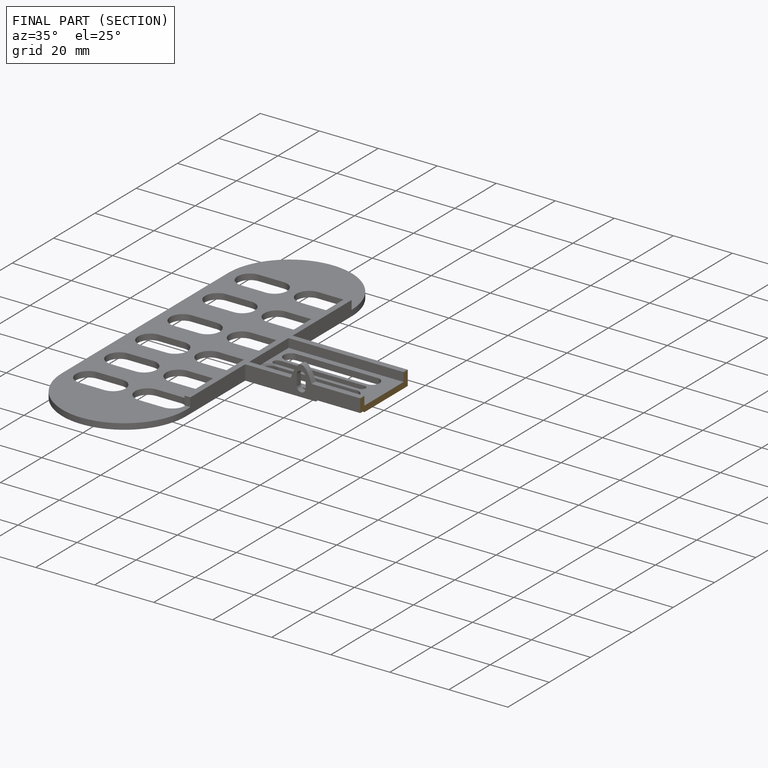
[diagram: finished part — half-section view (interior)]
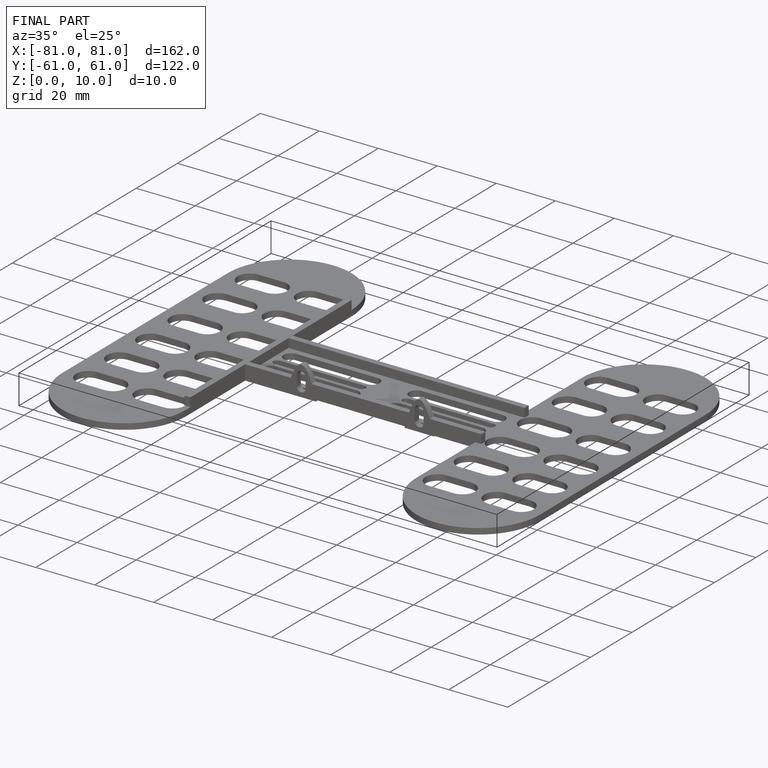
[diagram: finished part — iso view with bounding-box wireframe]
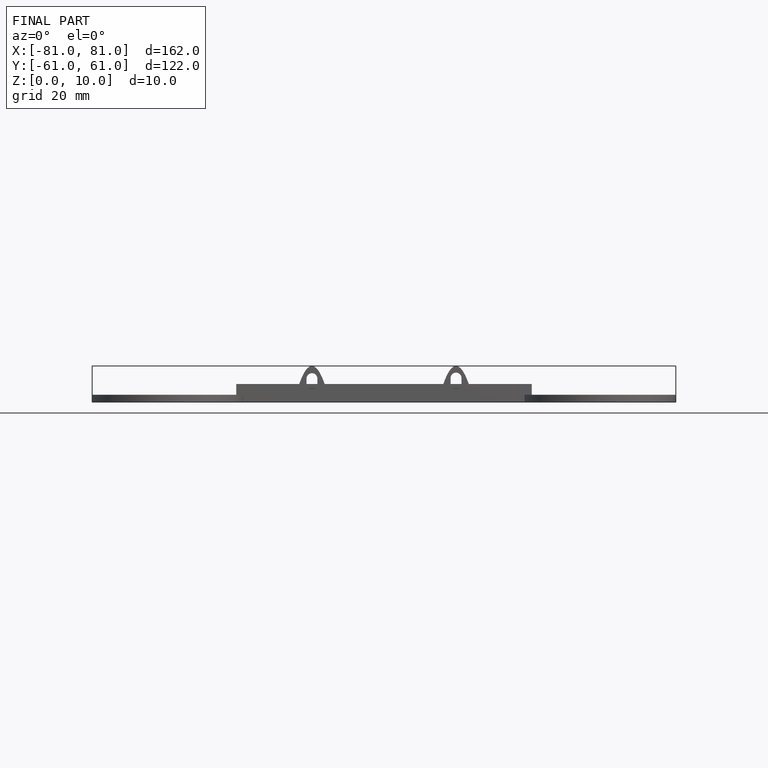
[diagram: finished part — front view with bounding-box wireframe]
